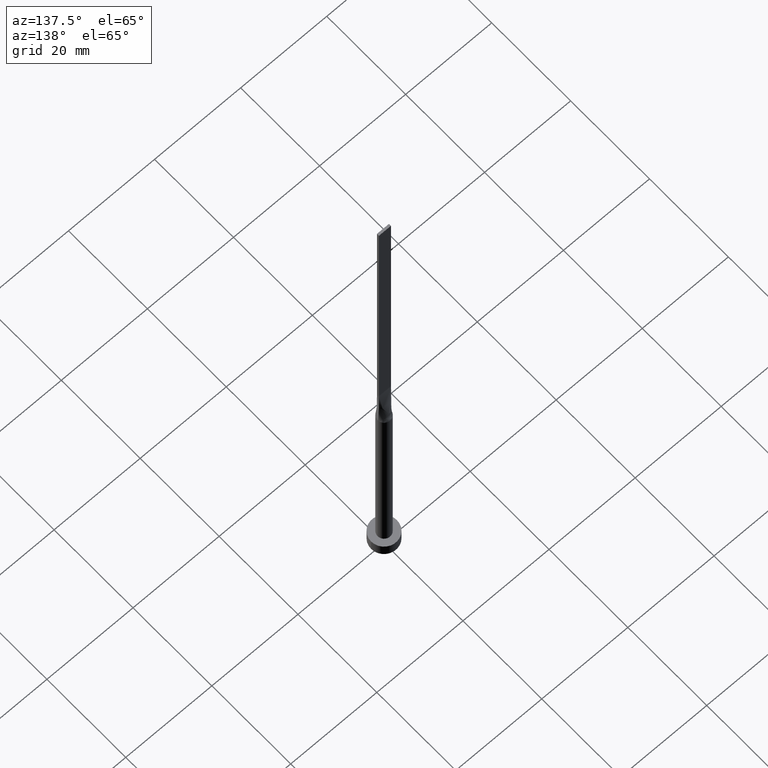
[diagram: clean part render]
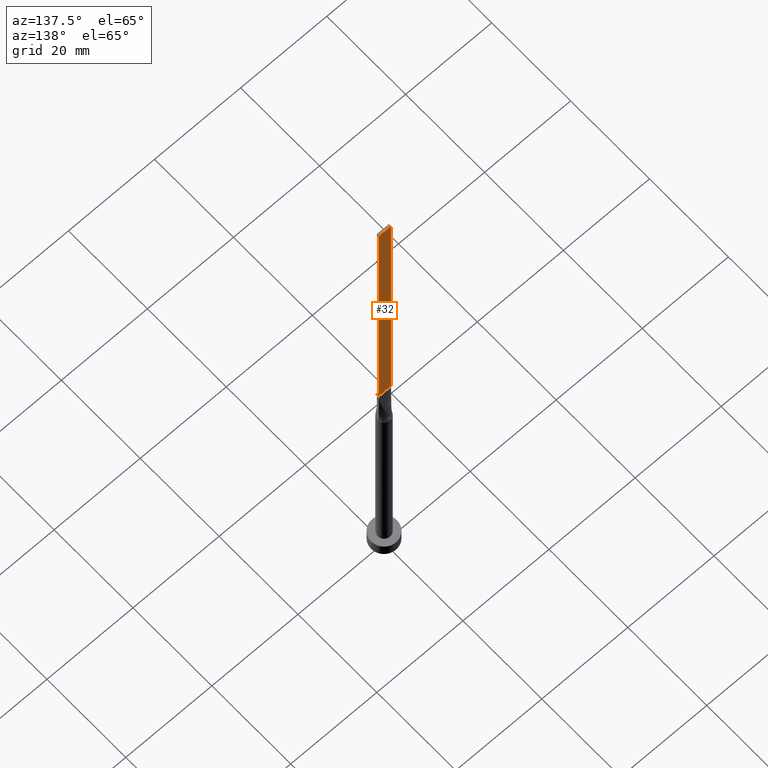
[diagram: same view with one face highlighted and labeled with its STEP entity id]
A machine part, auxiliary view. The second image highlights one B-rep face of the part: STEP entity #32.
In plain terms, the highlighted planar face has unit normal (0, -1, 0).
Its self-contained STEP definition (entity closure, byte-faithful):
#16 = LINE ( 'NONE', #196, #131 ) ;
#25 = EDGE_CURVE ( 'NONE', #537, #181, #294, .T. ) ;
#32 = ADVANCED_FACE ( 'NONE', ( #468 ), #300, .F. ) ;
#53 = EDGE_CURVE ( 'NONE', #262, #423, #16, .T. ) ;
#68 = DIRECTION ( 'NONE',  ( 0.000000000000000000, -1.000000000000000000, 0.000000000000000000 ) ) ;
#75 = DIRECTION ( 'NONE',  ( 0.000000000000000000, -0.000000000000000000, -1.000000000000000000 ) ) ;
#121 = CARTESIAN_POINT ( 'NONE',  ( 1.399999999999999911, 0.2500000000000002220, 125.0000000000000000 ) ) ;
#123 = CARTESIAN_POINT ( 'NONE',  ( -1.399999999999999911, 0.2500000000000002220, 125.0000000000000000 ) ) ;
#130 = CARTESIAN_POINT ( 'NONE',  ( 1.399999999999999911, 0.2500000000000002220, 125.0000000000000000 ) ) ;
#131 = VECTOR ( 'NONE', #430, 1000.000000000000000 ) ;
#142 = VECTOR ( 'NONE', #472, 1000.000000000000000 ) ;
#158 = DIRECTION ( 'NONE',  ( -1.000000000000000000, 0.000000000000000000, 0.000000000000000000 ) ) ;
#181 = VERTEX_POINT ( 'NONE', #566 ) ;
#184 = EDGE_CURVE ( 'NONE', #262, #537, #518, .T. ) ;
#196 = CARTESIAN_POINT ( 'NONE',  ( 1.399999999999999911, 0.2500000000000002220, 125.0000000000000000 ) ) ;
#200 = EDGE_CURVE ( 'NONE', #423, #181, #443, .T. ) ;
#211 = VECTOR ( 'NONE', #158, 1000.000000000000000 ) ;
#221 = ORIENTED_EDGE ( 'NONE', *, *, #25, .F. ) ;
#235 = CARTESIAN_POINT ( 'NONE',  ( 1.399999999999999911, 0.2500000000000002220, 60.00000000000000711 ) ) ;
#242 = CARTESIAN_POINT ( 'NONE',  ( 1.399999999999999911, 0.2500000000000002220, 125.0000000000000000 ) ) ;
#262 = VERTEX_POINT ( 'NONE', #130 ) ;
#294 = LINE ( 'NONE', #567, #142 ) ;
#300 = PLANE ( 'NONE',  #560 ) ;
#346 = EDGE_LOOP ( 'NONE', ( #392, #221, #374, #371 ) ) ;
#371 = ORIENTED_EDGE ( 'NONE', *, *, #53, .T. ) ;
#374 = ORIENTED_EDGE ( 'NONE', *, *, #184, .F. ) ;
#392 = ORIENTED_EDGE ( 'NONE', *, *, #200, .T. ) ;
#423 = VERTEX_POINT ( 'NONE', #235 ) ;
#430 = DIRECTION ( 'NONE',  ( -0.000000000000000000, -0.000000000000000000, -1.000000000000000000 ) ) ;
#442 = CARTESIAN_POINT ( 'NONE',  ( -1.399999999999999911, 0.2500000000000002220, 60.00000000000000711 ) ) ;
#443 = LINE ( 'NONE', #442, #536 ) ;
#468 = FACE_OUTER_BOUND ( 'NONE', #346, .T. ) ;
#472 = DIRECTION ( 'NONE',  ( -0.000000000000000000, -0.000000000000000000, -1.000000000000000000 ) ) ;
#518 = LINE ( 'NONE', #242, #211 ) ;
#536 = VECTOR ( 'NONE', #576, 1000.000000000000000 ) ;
#537 = VERTEX_POINT ( 'NONE', #123 ) ;
#560 = AXIS2_PLACEMENT_3D ( 'NONE', #121, #68, #75 ) ;
#566 = CARTESIAN_POINT ( 'NONE',  ( -1.399999999999999911, 0.2500000000000002220, 60.00000000000000711 ) ) ;
#567 = CARTESIAN_POINT ( 'NONE',  ( -1.399999999999999911, 0.2500000000000002220, 125.0000000000000000 ) ) ;
#576 = DIRECTION ( 'NONE',  ( -1.000000000000000000, -0.000000000000000000, -0.000000000000000000 ) ) ;